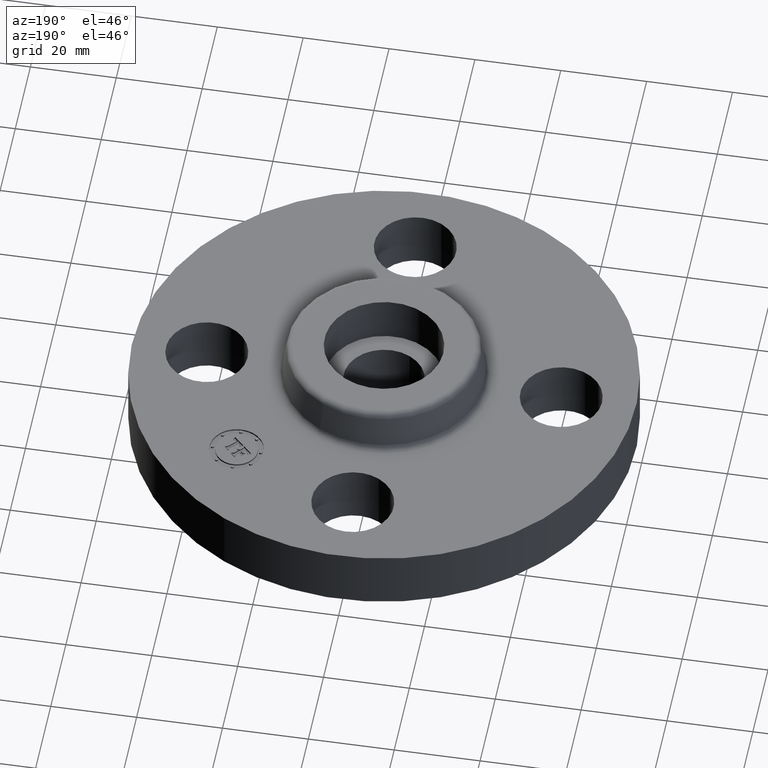
[diagram: clean part render]
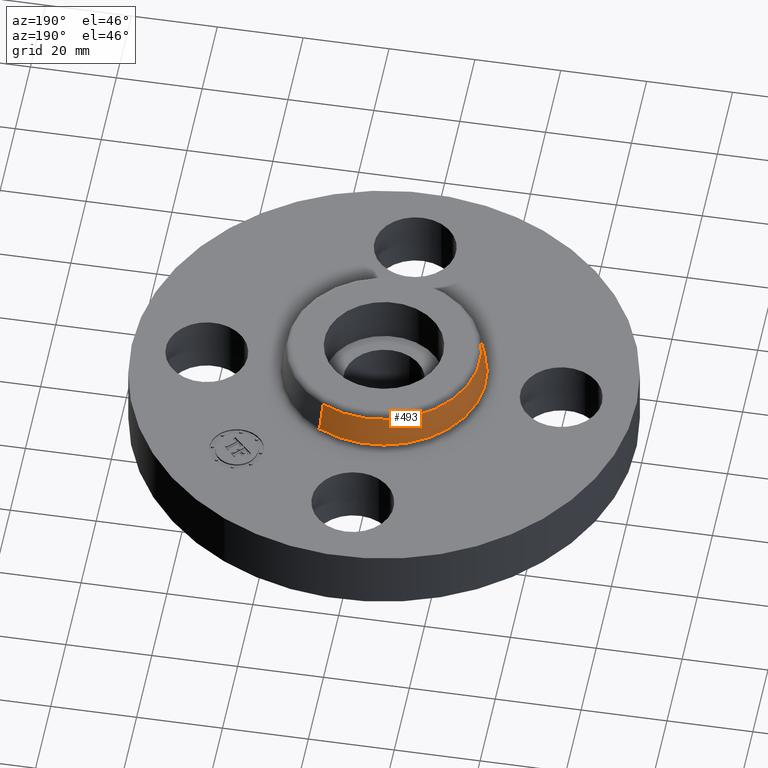
[diagram: same view with one face highlighted and labeled with its STEP entity id]
A machine part, auxiliary view. The second image highlights one B-rep face of the part: STEP entity #493.
In plain terms, the highlighted conical surface has half-angle 10 deg.
Its self-contained STEP definition (entity closure, byte-faithful):
#348=AXIS2_PLACEMENT_3D('Circle Axis2P3D',#346,#347,$) ;
#480=AXIS2_PLACEMENT_3D('Cone Axis2P3D',#477,#478,#479) ;
#484=AXIS2_PLACEMENT_3D('Circle Axis2P3D',#482,#483,$) ;
#312=CARTESIAN_POINT('Vertex',(0.422727828052,0.773798098875,0.890418890664)) ;
#314=CARTESIAN_POINT('Vertex',(-0.422727828052,-0.773798098876,0.890418890664)) ;
#346=CARTESIAN_POINT('Axis2P3D Location',(0.,0.,0.890418890664)) ;
#448=CARTESIAN_POINT('Vertex',(0.446468634603,0.81725535377,0.609581109342)) ;
#450=CARTESIAN_POINT('Vertex',(-0.446468634603,-0.81725535377,0.609581109342)) ;
#453=CARTESIAN_POINT('Line Origine',(0.434598231328,0.795526726322,0.750000000002)) ;
#458=CARTESIAN_POINT('Line Origine',(-0.434598231328,-0.795526726322,0.750000000002)) ;
#477=CARTESIAN_POINT('Axis2P3D Location',(0.,0.,0.890418890664)) ;
#482=CARTESIAN_POINT('Axis2P3D Location',(0.,0.,0.609581109342)) ;
#347=DIRECTION('Axis2P3D Direction',(-0.,0.,-0.0393700787402)) ;
#454=DIRECTION('Vector Direction',(0.00327761303565,0.00599963041827,-0.03877195878)) ;
#459=DIRECTION('Vector Direction',(-0.00327761303565,-0.00599963041827,-0.03877195878)) ;
#478=DIRECTION('Axis2P3D Direction',(0.,0.,-0.0393700787402)) ;
#479=DIRECTION('Axis2P3D XDirection',(-0.0188750212049,-0.0345504945626,0.)) ;
#483=DIRECTION('Axis2P3D Direction',(-0.,0.,-0.0393700787402)) ;
#455=VECTOR('Line Direction',#454,0.0393700787402) ;
#460=VECTOR('Line Direction',#459,0.0393700787402) ;
#488=ORIENTED_EDGE('',*,*,#486,.F.) ;
#489=ORIENTED_EDGE('',*,*,#462,.T.) ;
#490=ORIENTED_EDGE('',*,*,#350,.T.) ;
#491=ORIENTED_EDGE('',*,*,#457,.F.) ;
#493=ADVANCED_FACE('PartBody',(#492),#481,.T.) ;
#349=CIRCLE('generated circle',#348,0.881738234644) ;
#485=CIRCLE('generated circle',#484,0.931257512693) ;
#481=CONICAL_SURFACE('Cone',#480,0.881738234644,0.174532925199) ;
#350=EDGE_CURVE('',#315,#313,#349,.T.) ;
#457=EDGE_CURVE('',#449,#313,#456,.F.) ;
#462=EDGE_CURVE('',#451,#315,#461,.F.) ;
#486=EDGE_CURVE('',#451,#449,#485,.T.) ;
#487=EDGE_LOOP('',(#488,#489,#490,#491)) ;
#492=FACE_OUTER_BOUND('',#487,.T.) ;
#456=LINE('Line',#453,#455) ;
#461=LINE('Line',#458,#460) ;
#313=VERTEX_POINT('',#312) ;
#315=VERTEX_POINT('',#314) ;
#449=VERTEX_POINT('',#448) ;
#451=VERTEX_POINT('',#450) ;